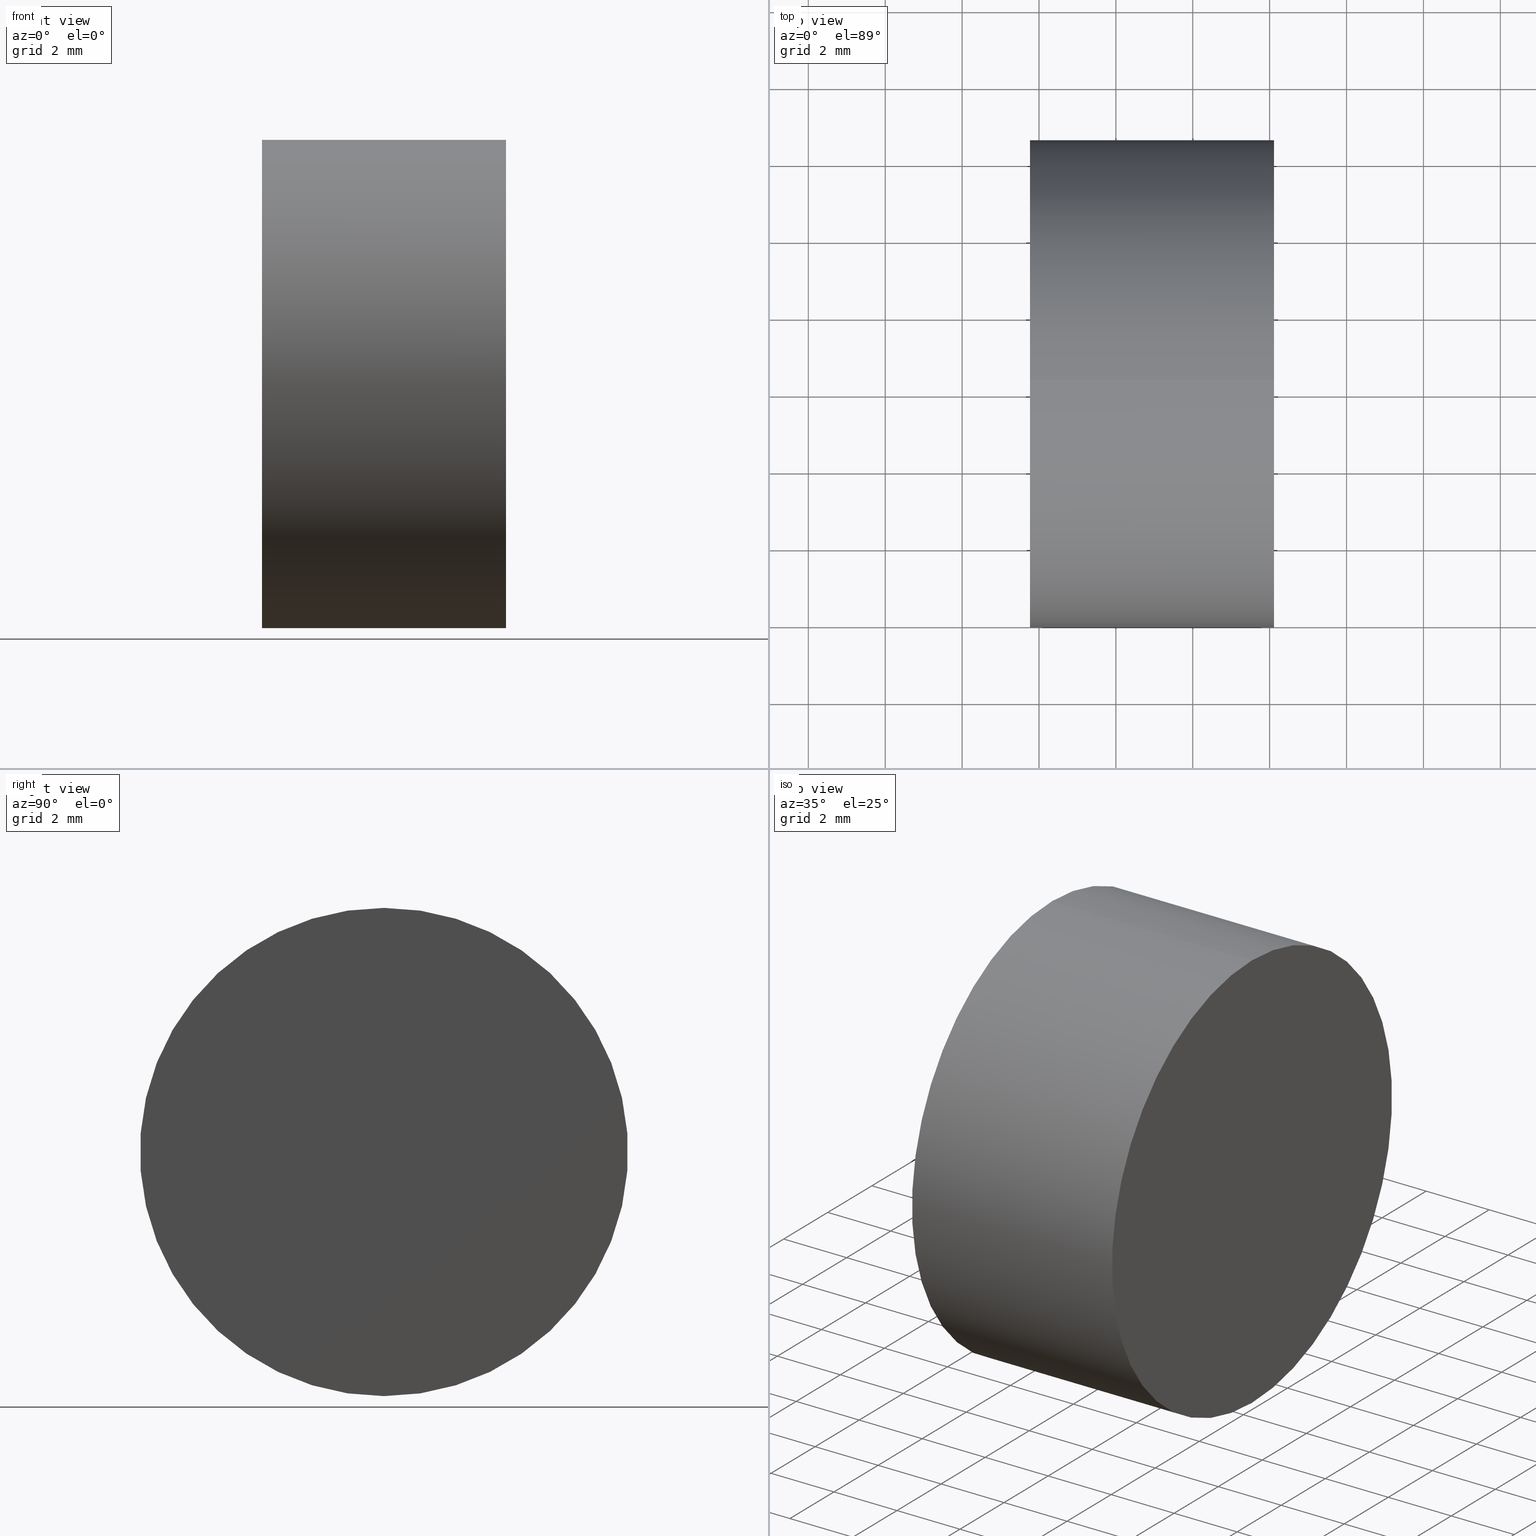
[diagram: canonical four-view strip — front | top / right | iso, engineering-drawing reading convention]
A machine part, canonical four-view strip (front | top / right | iso — engineering-drawing reading convention). The complete STEP part file that produces these views, byte-faithful:
ISO-10303-21;
HEADER;
FILE_DESCRIPTION (( 'STEP AP203' ),
    '1' );
FILE_NAME ('440002.STEP',
    '2019-08-23T07:20:13',
    ( '' ),
    ( '' ),
    'SwSTEP 2.0',
    'SolidWorks 2016',
    '' );
FILE_SCHEMA (( 'CONFIG_CONTROL_DESIGN' ));
ENDSEC;

DATA;
#1 = EDGE_CURVE ( 'NONE', #427, #516, #292, .T. ) ;
#2 = CLOSED_SHELL ( 'NONE', ( #26, #421, #32, #260 ) ) ;
#3 = ORIENTED_EDGE ( 'NONE', *, *, #611, .T. ) ;
#4 = APPROVAL ( #309, 'δָ��' ) ;
#5 = ORIENTED_EDGE ( 'NONE', *, *, #86, .F. ) ;
#6 = EDGE_CURVE ( 'NONE', #521, #332, #386, .T. ) ;
#7 = ADVANCED_FACE ( 'NONE', ( #564, #51 ), #512, .T. ) ;
#8 = APPROVAL_PERSON_ORGANIZATION ( #113, #132, #661 ) ;
#9 = FACE_OUTER_BOUND ( 'NONE', #485, .T. ) ;
#10 = DIRECTION ( 'NONE',  ( 1.000000000000000000, 0.0000000000000000000, 0.0000000000000000000 ) ) ;
#11 = FACE_OUTER_BOUND ( 'NONE', #339, .T. ) ;
#12 = APPROVAL ( #248, 'δָ��' ) ;
#13 = CARTESIAN_POINT ( 'NONE',  ( 234.1145190849216200, 0.0000000000000000000, 0.0000000000000000000 ) ) ;
#14 = AXIS2_PLACEMENT_3D ( 'NONE', #100, #407, #655 ) ;
#15 = CARTESIAN_POINT ( 'NONE',  ( 227.7645190849216300, 108.2256958952383700, 0.0000000000000000000 ) ) ;
#16 = DATE_AND_TIME ( #316, #425 ) ;
#17 = AXIS2_PLACEMENT_3D ( 'NONE', #436, #35, #284 ) ;
#18 = LINE ( 'NONE', #522, #527 ) ;
#19 = EDGE_LOOP ( 'NONE', ( #181, #498 ) ) ;
#20 = EDGE_LOOP ( 'NONE', ( #138, #318 ) ) ;
#21 = DIRECTION ( 'NONE',  ( 0.0000000000000000000, 0.0000000000000000000, 1.000000000000000000 ) ) ;
#22 = EDGE_CURVE ( 'NONE', #533, #466, #426, .T. ) ;
#23 = EDGE_CURVE ( 'NONE', #130, #259, #18, .T. ) ;
#24 = SECURITY_CLASSIFICATION ( '', '', #307 ) ;
#25 = APPROVAL_DATE_TIME ( #552, #12 ) ;
#26 = ADVANCED_FACE ( 'NONE', ( #65 ), #153, .T. ) ;
#27 = EDGE_CURVE ( 'NONE', #521, #662, #282, .T. ) ;
#28 = FACE_BOUND ( 'NONE', #610, .T. ) ;
#29 = CARTESIAN_POINT ( 'NONE',  ( 234.1145190849216200, 108.2256958952383700, 0.0000000000000000000 ) ) ;
#30 = ORIENTED_EDGE ( 'NONE', *, *, #182, .F. ) ;
#31 = CARTESIAN_POINT ( 'NONE',  ( 228.7645190849216300, 108.2256958952383700, 0.0000000000000000000 ) ) ;
#32 = ADVANCED_FACE ( 'NONE', ( #163 ), #418, .T. ) ;
#33 = DIRECTION ( 'NONE',  ( 0.0000000000000000000, 0.0000000000000000000, 1.000000000000000000 ) ) ;
#34 = CC_DESIGN_PERSON_AND_ORGANIZATION_ASSIGNMENT ( #77, #110, ( #657 ) ) ;
#35 = DIRECTION ( 'NONE',  ( -1.000000000000000000, -0.0000000000000000000, -0.0000000000000000000 ) ) ;
#36 = LOCAL_TIME ( 15, 20, 13.00000000000000000, #439 ) ;
#37 = APPROVAL_PERSON_ORGANIZATION ( #250, #370, #355 ) ;
#38 = EDGE_LOOP ( 'NONE', ( #375, #170 ) ) ;
#39 = DIRECTION ( 'NONE',  ( 0.0000000000000000000, 0.0000000000000000000, 1.000000000000000000 ) ) ;
#40 = ORIENTED_EDGE ( 'NONE', *, *, #84, .F. ) ;
#41 = CARTESIAN_POINT ( 'NONE',  ( 234.1145190849216200, 108.2256958952383700, 5.025000000000015500 ) ) ;
#42 = DIRECTION ( 'NONE',  ( 1.000000000000000000, 0.0000000000000000000, 0.0000000000000000000 ) ) ;
#43 = AXIS2_PLACEMENT_3D ( 'NONE', #508, #652, #156 ) ;
#44 = DIRECTION ( 'NONE',  ( -1.000000000000000000, -0.0000000000000000000, -0.0000000000000000000 ) ) ;
#45 = PERSON_AND_ORGANIZATION_ROLE ( 'creator' ) ;
#46 = CARTESIAN_POINT ( 'NONE',  ( 227.7645190849216300, 108.2256958952383700, 5.025000000000002100 ) ) ;
#47 = CYLINDRICAL_SURFACE ( 'NONE', #484, 5.025000000000022600 ) ;
#48 = DATE_TIME_ROLE ( 'creation_date' ) ;
#49 = FACE_BOUND ( 'NONE', #473, .T. ) ;
#50 = EDGE_CURVE ( 'NONE', #541, #107, #405, .T. ) ;
#51 = FACE_OUTER_BOUND ( 'NONE', #432, .T. ) ;
#52 = DIRECTION ( 'NONE',  ( 0.0000000000000000000, 0.0000000000000000000, 1.000000000000000000 ) ) ;
#53 = APPLICATION_PROTOCOL_DEFINITION ( 'international standard', 'config_control_design', 1994, #150 ) ;
#54 = CC_DESIGN_DATE_AND_TIME_ASSIGNMENT ( #626, #553, ( #24 ) ) ;
#55 = EDGE_CURVE ( 'NONE', #516, #427, #660, .T. ) ;
#56 = CARTESIAN_POINT ( 'NONE',  ( 219.9023322559852100, 108.2256958952383700, 0.0000000000000000000 ) ) ;
#57 = APPROVAL_ROLE ( '' ) ;
#58 = ORIENTED_EDGE ( 'NONE', *, *, #50, .F. ) ;
#59 = EDGE_LOOP ( 'NONE', ( #387, #210, #192, #115 ) ) ;
#60 = AXIS2_PLACEMENT_3D ( 'NONE', #640, #441, #585 ) ;
#61 = EDGE_CURVE ( 'NONE', #662, #521, #635, .T. ) ;
#62 = ADVANCED_FACE ( 'NONE', ( #393 ), #281, .F. ) ;
#63 = APPROVAL_PERSON_ORGANIZATION ( #524, #612, #57 ) ;
#64 = FACE_OUTER_BOUND ( 'NONE', #293, .T. ) ;
#65 = FACE_OUTER_BOUND ( 'NONE', #143, .T. ) ;
#66 = ORIENTED_EDGE ( 'NONE', *, *, #126, .T. ) ;
#67 = AXIS2_PLACEMENT_3D ( 'NONE', #486, #195, #344 ) ;
#68 = DIRECTION ( 'NONE',  ( 0.0000000000000000000, 0.0000000000000000000, 1.000000000000000000 ) ) ;
#69 = APPROVAL_DATE_TIME ( #120, #612 ) ;
#70 = LINE ( 'NONE', #437, #647 ) ;
#71 = EDGE_LOOP ( 'NONE', ( #326, #144, #649, #528 ) ) ;
#72 = VERTEX_POINT ( 'NONE', #538 ) ;
#73 = ORIENTED_EDGE ( 'NONE', *, *, #177, .T. ) ;
#74 = EDGE_CURVE ( 'NONE', #130, #235, #252, .T. ) ;
#75 = CC_DESIGN_APPROVAL ( #12, ( #579 ) ) ;
#76 = ADVANCED_FACE ( 'NONE', ( #11 ), #199, .F. ) ;
#77 = PERSON_AND_ORGANIZATION ( #586, #142 ) ;
#78 = DIRECTION ( 'NONE',  ( -1.000000000000000000, -0.0000000000000000000, -0.0000000000000000000 ) ) ;
#79 = COORDINATED_UNIVERSAL_TIME_OFFSET ( 8, 0, .AHEAD. ) ;
#80 = LINE ( 'NONE', #544, #497 ) ;
#81 = ORIENTED_EDGE ( 'NONE', *, *, #358, .F. ) ;
#82 = PLANE ( 'NONE',  #134 ) ;
#83 = ADVANCED_FACE ( 'NONE', ( #507, #9 ), #236, .F. ) ;
#84 = EDGE_CURVE ( 'NONE', #565, #414, #580, .T. ) ;
#85 = DIRECTION ( 'NONE',  ( -1.000000000000000000, -0.0000000000000000000, -0.0000000000000000000 ) ) ;
#86 = EDGE_CURVE ( 'NONE', #107, #541, #420, .T. ) ;
#87 = FACE_OUTER_BOUND ( 'NONE', #59, .T. ) ;
#88 = CARTESIAN_POINT ( 'NONE',  ( 219.9023322559852100, 108.2256958952383700, 0.0000000000000000000 ) ) ;
#89 = VERTEX_POINT ( 'NONE', #291 ) ;
#90 = EDGE_LOOP ( 'NONE', ( #109, #175 ) ) ;
#91 = CARTESIAN_POINT ( 'NONE',  ( 219.9023322559852100, 108.2256958952383700, 0.0000000000000000000 ) ) ;
#92 = PLANE ( 'NONE',  #279 ) ;
#93 =( GEOMETRIC_REPRESENTATION_CONTEXT ( 3 ) GLOBAL_UNCERTAINTY_ASSIGNED_CONTEXT ( ( #232 ) ) GLOBAL_UNIT_ASSIGNED_CONTEXT ( ( #503, #558, #357 ) ) REPRESENTATION_CONTEXT ( 'NONE', 'WORKASPACE' ) );
#94 = DIRECTION ( 'NONE',  ( -1.000000000000000000, -0.0000000000000000000, -0.0000000000000000000 ) ) ;
#95 = CARTESIAN_POINT ( 'NONE',  ( 233.1145190849216200, 108.2256958952383700, 0.0000000000000000000 ) ) ;
#96 = DIRECTION ( 'NONE',  ( -1.000000000000000000, -0.0000000000000000000, -0.0000000000000000000 ) ) ;
#97 = LINE ( 'NONE', #396, #514 ) ;
#98 = CARTESIAN_POINT ( 'NONE',  ( 219.9023322559852100, 108.2256958952383700, 5.025000000000022600 ) ) ;
#99 = ORIENTED_EDGE ( 'NONE', *, *, #112, .F. ) ;
#100 = CARTESIAN_POINT ( 'NONE',  ( 227.7645190849216300, 108.2256958952383700, 0.0000000000000000000 ) ) ;
#101 = AXIS2_PLACEMENT_3D ( 'NONE', #15, #478, #475 ) ;
#102 = DIRECTION ( 'NONE',  ( 0.0000000000000000000, 0.0000000000000000000, 1.000000000000000000 ) ) ;
#103 = PERSON_AND_ORGANIZATION_ROLE ( 'creator' ) ;
#104 = CARTESIAN_POINT ( 'NONE',  ( 227.7645190849216300, 108.2256958952383700, 0.0000000000000000000 ) ) ;
#105 = APPLICATION_CONTEXT ( 'configuration controlled 3d designs of mechanical parts and assemblies' ) ;
#106 = FACE_OUTER_BOUND ( 'NONE', #71, .T. ) ;
#107 = VERTEX_POINT ( 'NONE', #644 ) ;
#108 = DIRECTION ( 'NONE',  ( -1.000000000000000000, -0.0000000000000000000, -0.0000000000000000000 ) ) ;
#109 = ORIENTED_EDGE ( 'NONE', *, *, #84, .T. ) ;
#110 = PERSON_AND_ORGANIZATION_ROLE ( 'classification_officer' ) ;
#111 = ADVANCED_FACE ( 'NONE', ( #520 ), #592, .T. ) ;
#112 = EDGE_CURVE ( 'NONE', #581, #107, #70, .T. ) ;
#113 = PERSON_AND_ORGANIZATION ( #586, #142 ) ;
#114 = CYLINDRICAL_SURFACE ( 'NONE', #430, 5.025000000000002100 ) ;
#115 = ORIENTED_EDGE ( 'NONE', *, *, #623, .T. ) ;
#116 = ADVANCED_FACE ( 'NONE', ( #28, #378 ), #388, .F. ) ;
#117 = DIRECTION ( 'NONE',  ( -1.000000000000000000, -0.0000000000000000000, -0.0000000000000000000 ) ) ;
#118 = ADVANCED_FACE ( 'NONE', ( #531 ), #608, .F. ) ;
#119 = CARTESIAN_POINT ( 'NONE',  ( 219.9023322559852100, 108.2256958952383700, 0.0000000000000000000 ) ) ;
#120 = DATE_AND_TIME ( #496, #625 ) ;
#121 = ADVANCED_BREP_SHAPE_REPRESENTATION ( '440002', ( #342, #149, #571, #43 ), #93 ) ;
#122 = LINE ( 'NONE', #359, #300 ) ;
#123 = ORIENTED_EDGE ( 'NONE', *, *, #477, .T. ) ;
#124 = ORIENTED_EDGE ( 'NONE', *, *, #602, .F. ) ;
#125 = DIRECTION ( 'NONE',  ( 0.0000000000000000000, 0.0000000000000000000, 1.000000000000000000 ) ) ;
#126 = EDGE_CURVE ( 'NONE', #174, #422, #384, .T. ) ;
#127 = CC_DESIGN_PERSON_AND_ORGANIZATION_ASSIGNMENT ( #367, #501, ( #183 ) ) ;
#128 = COORDINATED_UNIVERSAL_TIME_OFFSET ( 8, 0, .AHEAD. ) ;
#129 = VECTOR ( 'NONE', #556, 1000.000000000000000 ) ;
#130 = VERTEX_POINT ( 'NONE', #546 ) ;
#131 = DIRECTION ( 'NONE',  ( -1.000000000000000000, -0.0000000000000000000, -0.0000000000000000000 ) ) ;
#132 = APPROVAL ( #409, 'δָ��' ) ;
#133 = CARTESIAN_POINT ( 'NONE',  ( 228.7645190849216300, 108.2256958952383700, 0.0000000000000000000 ) ) ;
#134 = AXIS2_PLACEMENT_3D ( 'NONE', #331, #327, #530 ) ;
#135 = COORDINATED_UNIVERSAL_TIME_OFFSET ( 8, 0, .AHEAD. ) ;
#136 = CIRCLE ( 'NONE', #468, 5.025000000000029700 ) ;
#137 = VERTEX_POINT ( 'NONE', #148 ) ;
#138 = ORIENTED_EDGE ( 'NONE', *, *, #372, .F. ) ;
#139 = CARTESIAN_POINT ( 'NONE',  ( 227.7645190849216300, 108.2256958952383700, 0.0000000000000000000 ) ) ;
#140 = DIRECTION ( 'NONE',  ( -1.000000000000000000, -0.0000000000000000000, -0.0000000000000000000 ) ) ;
#141 = EDGE_CURVE ( 'NONE', #593, #332, #505, .T. ) ;
#142 = ORGANIZATION ( 'δָ��', 'δָ��', '' ) ;
#143 = EDGE_LOOP ( 'NONE', ( #208, #341, #30, #244 ) ) ;
#144 = ORIENTED_EDGE ( 'NONE', *, *, #74, .T. ) ;
#145 = DIRECTION ( 'NONE',  ( 1.000000000000000000, 0.0000000000000000000, 0.0000000000000000000 ) ) ;
#146 = ORIENTED_EDGE ( 'NONE', *, *, #1, .F. ) ;
#147 = AXIS2_PLACEMENT_3D ( 'NONE', #351, #159, #452 ) ;
#148 = CARTESIAN_POINT ( 'NONE',  ( 233.1145190849216200, 108.2256958952383700, -4.049999999999998000 ) ) ;
#149 = MANIFOLD_SOLID_BREP ( '��ת2', #2 ) ;
#150 = APPLICATION_CONTEXT ( 'configuration controlled 3d designs of mechanical parts and assemblies' ) ;
#151 = CALENDAR_DATE ( 2019, 23, 8 ) ;
#152 = VECTOR ( 'NONE', #348, 1000.000000000000000 ) ;
#153 = CYLINDRICAL_SURFACE ( 'NONE', #515, 5.025000000000002100 ) ;
#154 = SECURITY_CLASSIFICATION_LEVEL ( 'unclassified' ) ;
#155 = DIRECTION ( 'NONE',  ( -1.000000000000000000, -0.0000000000000000000, -0.0000000000000000000 ) ) ;
#156 = DIRECTION ( 'NONE',  ( 1.000000000000000000, 0.0000000000000000000, 0.0000000000000000000 ) ) ;
#157 = EDGE_CURVE ( 'NONE', #422, #174, #464, .T. ) ;
#158 = DIRECTION ( 'NONE',  ( 0.0000000000000000000, 0.0000000000000000000, 1.000000000000000000 ) ) ;
#159 = DIRECTION ( 'NONE',  ( 0.0000000000000000000, 0.0000000000000000000, 1.000000000000000000 ) ) ;
#160 = DIRECTION ( 'NONE',  ( -1.000000000000000000, -0.0000000000000000000, -0.0000000000000000000 ) ) ;
#161 = CC_DESIGN_APPROVAL ( #4, ( #549 ) ) ;
#162 = PERSON_AND_ORGANIZATION ( #586, #142 ) ;
#163 = FACE_OUTER_BOUND ( 'NONE', #20, .T. ) ;
#164 = DIRECTION ( 'NONE',  ( 0.0000000000000000000, 0.0000000000000000000, 1.000000000000000000 ) ) ;
#165 = ORIENTED_EDGE ( 'NONE', *, *, #648, .F. ) ;
#166 = DIRECTION ( 'NONE',  ( 1.000000000000000000, 0.0000000000000000000, 0.0000000000000000000 ) ) ;
#167 = APPROVAL ( #547, 'δָ��' ) ;
#168 = CYLINDRICAL_SURFACE ( 'NONE', #381, 5.025000000000022600 ) ;
#169 = FACE_OUTER_BOUND ( 'NONE', #323, .T. ) ;
#170 = ORIENTED_EDGE ( 'NONE', *, *, #141, .F. ) ;
#171 = AXIS2_PLACEMENT_3D ( 'NONE', #272, #328, #21 ) ;
#172 = ADVANCED_FACE ( 'NONE', ( #658 ), #265, .T. ) ;
#173 = DIRECTION ( 'NONE',  ( 0.0000000000000000000, 0.0000000000000000000, -1.000000000000000000 ) ) ;
#174 = VERTEX_POINT ( 'NONE', #659 ) ;
#175 = ORIENTED_EDGE ( 'NONE', *, *, #406, .T. ) ;
#176 = CARTESIAN_POINT ( 'NONE',  ( 227.7645190849216300, 108.2256958952383700, 0.0000000000000000000 ) ) ;
#177 = EDGE_CURVE ( 'NONE', #89, #462, #251, .T. ) ;
#178 = CARTESIAN_POINT ( 'NONE',  ( 219.9023322559852100, 108.2256958952383700, 0.0000000000000000000 ) ) ;
#179 = APPROVAL_PERSON_ORGANIZATION ( #645, #12, #449 ) ;
#180 = CYLINDRICAL_SURFACE ( 'NONE', #613, 5.025000000000002100 ) ;
#181 = ORIENTED_EDGE ( 'NONE', *, *, #27, .T. ) ;
#182 = EDGE_CURVE ( 'NONE', #274, #259, #373, .T. ) ;
#183 = PRODUCT ( '440002', '440002', '', ( #196 ) ) ;
#184 = CARTESIAN_POINT ( 'NONE',  ( 219.9023322559852100, 108.2256958952383700, 0.0000000000000000000 ) ) ;
#185 = CARTESIAN_POINT ( 'NONE',  ( 219.9023322559852100, 108.2256958952383700, 0.0000000000000000000 ) ) ;
#186 = AXIS2_PLACEMENT_3D ( 'NONE', #495, #140, #434 ) ;
#187 = DIRECTION ( 'NONE',  ( 0.0000000000000000000, 0.0000000000000000000, 1.000000000000000000 ) ) ;
#188 = DATE_AND_TIME ( #519, #656 ) ;
#189 = EDGE_LOOP ( 'NONE', ( #253, #483 ) ) ;
#190 = ORIENTED_EDGE ( 'NONE', *, *, #240, .T. ) ;
#191 = CARTESIAN_POINT ( 'NONE',  ( 234.1145190849216200, 108.2256958952383700, 0.0000000000000000000 ) ) ;
#192 = ORIENTED_EDGE ( 'NONE', *, *, #6, .T. ) ;
#193 = DIRECTION ( 'NONE',  ( -1.000000000000000000, -0.0000000000000000000, -0.0000000000000000000 ) ) ;
#194 = CARTESIAN_POINT ( 'NONE',  ( 227.7645190849216300, 108.2256958952383700, -5.025000000000002100 ) ) ;
#195 = DIRECTION ( 'NONE',  ( 1.000000000000000000, 0.0000000000000000000, 0.0000000000000000000 ) ) ;
#196 = MECHANICAL_CONTEXT ( 'NONE', #150, 'mechanical' ) ;
#197 = CARTESIAN_POINT ( 'NONE',  ( 234.1145190849216200, 108.2256958952383700, 0.0000000000000000000 ) ) ;
#198 = COORDINATED_UNIVERSAL_TIME_OFFSET ( 8, 0, .AHEAD. ) ;
#199 = CYLINDRICAL_SURFACE ( 'NONE', #273, 4.049999999999998000 ) ;
#200 = ORIENTED_EDGE ( 'NONE', *, *, #6, .F. ) ;
#201 = CARTESIAN_POINT ( 'NONE',  ( 227.7645190849216300, 108.2256958952383700, -5.025000000000002100 ) ) ;
#202 = PERSON_AND_ORGANIZATION_ROLE ( 'design_supplier' ) ;
#203 = AXIS2_PLACEMENT_3D ( 'NONE', #13, #166, #173 ) ;
#204 = APPLICATION_PROTOCOL_DEFINITION ( 'international standard', 'config_control_design', 1994, #663 ) ;
#205 = PERSON_AND_ORGANIZATION ( #586, #142 ) ;
#206 = CIRCLE ( 'NONE', #654, 5.025000000000002100 ) ;
#207 = CARTESIAN_POINT ( 'NONE',  ( 228.7645190849216300, 108.2256958952383700, 5.025000000000002100 ) ) ;
#208 = ORIENTED_EDGE ( 'NONE', *, *, #372, .T. ) ;
#209 = CC_DESIGN_DATE_AND_TIME_ASSIGNMENT ( #469, #457, ( #657 ) ) ;
#210 = ORIENTED_EDGE ( 'NONE', *, *, #27, .F. ) ;
#211 = EDGE_LOOP ( 'NONE', ( #228, #343, #555, #200 ) ) ;
#212 = CC_DESIGN_PERSON_AND_ORGANIZATION_ASSIGNMENT ( #419, #500, ( #579 ) ) ;
#213 = CALENDAR_DATE ( 2019, 23, 8 ) ;
#214 = FACE_OUTER_BOUND ( 'NONE', #234, .T. ) ;
#215 = PRODUCT_DEFINITION_SHAPE ( 'NONE', 'NONE',  #303 ) ;
#216 = EDGE_LOOP ( 'NONE', ( #395, #543, #622, #99 ) ) ;
#217 = CARTESIAN_POINT ( 'NONE',  ( 228.7645190849216300, 108.2256958952383700, 0.0000000000000000000 ) ) ;
#218 = CARTESIAN_POINT ( 'NONE',  ( 234.1145190849216200, 108.2256958952383700, 0.0000000000000000000 ) ) ;
#219 = CYLINDRICAL_SURFACE ( 'NONE', #642, 5.025000000000022600 ) ;
#220 = DIRECTION ( 'NONE',  ( -1.000000000000000000, -0.0000000000000000000, -0.0000000000000000000 ) ) ;
#221 = ORIENTED_EDGE ( 'NONE', *, *, #319, .F. ) ;
#222 = AXIS2_PLACEMENT_3D ( 'NONE', #217, #315, #125 ) ;
#223 = ORIENTED_EDGE ( 'NONE', *, *, #1, .T. ) ;
#224 = CC_DESIGN_PERSON_AND_ORGANIZATION_ASSIGNMENT ( #280, #604, ( #24 ) ) ;
#225 = DIRECTION ( 'NONE',  ( 0.0000000000000000000, 0.0000000000000000000, 1.000000000000000000 ) ) ;
#226 = LOCAL_TIME ( 15, 20, 13.00000000000000000, #198 ) ;
#227 = VECTOR ( 'NONE', #155, 1000.000000000000000 ) ;
#228 = ORIENTED_EDGE ( 'NONE', *, *, #61, .F. ) ;
#229 = CC_DESIGN_SECURITY_CLASSIFICATION ( #24, ( #579 ) ) ;
#230 = AXIS2_PLACEMENT_3D ( 'NONE', #185, #94, #542 ) ;
#231 = DIRECTION ( 'NONE',  ( -1.000000000000000000, -0.0000000000000000000, -0.0000000000000000000 ) ) ;
#232 = UNCERTAINTY_MEASURE_WITH_UNIT (LENGTH_MEASURE( 1.000000000000000100E-005 ), #503, 'distance_accuracy_value', 'NONE');
#233 = CIRCLE ( 'NONE', #435, 5.025000000000015500 ) ;
#234 = EDGE_LOOP ( 'NONE', ( #615, #471, #628, #364 ) ) ;
#235 = VERTEX_POINT ( 'NONE', #207 ) ;
#236 = PLANE ( 'NONE',  #562 ) ;
#237 = CARTESIAN_POINT ( 'NONE',  ( 219.9023322559852100, 108.2256958952383700, 5.025000000000022600 ) ) ;
#238 = DIRECTION ( 'NONE',  ( -1.000000000000000000, -0.0000000000000000000, -0.0000000000000000000 ) ) ;
#239 = DIRECTION ( 'NONE',  ( -1.000000000000000000, -0.0000000000000000000, -0.0000000000000000000 ) ) ;
#240 = EDGE_CURVE ( 'NONE', #581, #137, #470, .T. ) ;
#241 = COORDINATED_UNIVERSAL_TIME_OFFSET ( 8, 0, .AHEAD. ) ;
#242 = CALENDAR_DATE ( 2019, 23, 8 ) ;
#243 = CIRCLE ( 'NONE', #60, 5.025000000000029700 ) ;
#244 = ORIENTED_EDGE ( 'NONE', *, *, #545, .F. ) ;
#245 = CARTESIAN_POINT ( 'NONE',  ( 233.1145190849216200, 108.2256958952383700, 0.0000000000000000000 ) ) ;
#246 = PRODUCT_RELATED_PRODUCT_CATEGORY ( 'detail', '', ( #183 ) ) ;
#247 = DIRECTION ( 'NONE',  ( -1.000000000000000000, -0.0000000000000000000, -0.0000000000000000000 ) ) ;
#248 = APPROVAL_STATUS ( 'not_yet_approved' ) ;
#249 = APPROVAL_STATUS ( 'not_yet_approved' ) ;
#250 = PERSON_AND_ORGANIZATION ( #586, #142 ) ;
#251 = CIRCLE ( 'NONE', #313, 5.025000000000029700 ) ;
#252 = CIRCLE ( 'NONE', #636, 5.025000000000002100 ) ;
#253 = ORIENTED_EDGE ( 'NONE', *, *, #477, .F. ) ;
#254 = EDGE_CURVE ( 'NONE', #466, #72, #258, .T. ) ;
#255 = DESIGN_CONTEXT ( 'detailed design', #601, 'design' ) ;
#256 = CC_DESIGN_APPROVAL ( #132, ( #24 ) ) ;
#257 = APPROVAL_PERSON_ORGANIZATION ( #463, #4, #360 ) ;
#258 = LINE ( 'NONE', #98, #317 ) ;
#259 = VERTEX_POINT ( 'NONE', #201 ) ;
#260 = ADVANCED_FACE ( 'NONE', ( #106 ), #180, .T. ) ;
#261 = CC_DESIGN_PERSON_AND_ORGANIZATION_ASSIGNMENT ( #162, #607, ( #285 ) ) ;
#262 = CARTESIAN_POINT ( 'NONE',  ( 219.9023322559852100, 108.2256958952383700, 0.0000000000000000000 ) ) ;
#263 = PERSON_AND_ORGANIZATION ( #586, #142 ) ;
#264 = AXIS2_PLACEMENT_3D ( 'NONE', #104, #44, #158 ) ;
#265 = CYLINDRICAL_SURFACE ( 'NONE', #479, 6.350000000000008500 ) ;
#266 = EDGE_LOOP ( 'NONE', ( #379, #490 ) ) ;
#267 = EDGE_LOOP ( 'NONE', ( #123, #465, #165, #301 ) ) ;
#268 = CARTESIAN_POINT ( 'NONE',  ( 233.1145190849216200, 108.2256958952383700, -5.025000000000029700 ) ) ;
#269 = PERSON_AND_ORGANIZATION ( #586, #142 ) ;
#270 = ORIENTED_EDGE ( 'NONE', *, *, #55, .F. ) ;
#271 = PRODUCT_DEFINITION_FORMATION_WITH_SPECIFIED_SOURCE ( '�κ�', '', #285, .NOT_KNOWN. ) ;
#272 = CARTESIAN_POINT ( 'NONE',  ( 233.1145190849216200, 108.2256958952383700, 0.0000000000000000000 ) ) ;
#273 = AXIS2_PLACEMENT_3D ( 'NONE', #91, #394, #286 ) ;
#274 = VERTEX_POINT ( 'NONE', #400 ) ;
#275 = DIRECTION ( 'NONE',  ( 0.0000000000000000000, 0.0000000000000000000, 1.000000000000000000 ) ) ;
#276 = ADVANCED_FACE ( 'NONE', ( #49, #330 ), #603, .T. ) ;
#277 = AXIS2_PLACEMENT_3D ( 'NONE', #245, #597, #302 ) ;
#278 = DIRECTION ( 'NONE',  ( -1.000000000000000000, -0.0000000000000000000, -0.0000000000000000000 ) ) ;
#279 = AXIS2_PLACEMENT_3D ( 'NONE', #493, #646, #390 ) ;
#280 = PERSON_AND_ORGANIZATION ( #586, #142 ) ;
#281 = CYLINDRICAL_SURFACE ( 'NONE', #461, 5.025000000000022600 ) ;
#282 = CIRCLE ( 'NONE', #222, 5.025000000000002100 ) ;
#283 = DIRECTION ( 'NONE',  ( 0.0000000000000000000, 0.0000000000000000000, -1.000000000000000000 ) ) ;
#284 = DIRECTION ( 'NONE',  ( 0.0000000000000000000, 0.0000000000000000000, 1.000000000000000000 ) ) ;
#285 = PRODUCT ( '440002', '440002', '', ( #402 ) ) ;
#286 = DIRECTION ( 'NONE',  ( 0.0000000000000000000, 0.0000000000000000000, 1.000000000000000000 ) ) ;
#287 = CARTESIAN_POINT ( 'NONE',  ( 234.1145190849216200, 108.2256958952383700, -5.025000000000015500 ) ) ;
#288 = CC_DESIGN_DATE_AND_TIME_ASSIGNMENT ( #643, #48, ( #303 ) ) ;
#289 = AXIS2_PLACEMENT_3D ( 'NONE', #197, #551, #606 ) ;
#290 = DIRECTION ( 'NONE',  ( 0.0000000000000000000, 0.0000000000000000000, 1.000000000000000000 ) ) ;
#291 = CARTESIAN_POINT ( 'NONE',  ( 233.1145190849216200, 108.2256958952383700, 5.025000000000029700 ) ) ;
#292 = CIRCLE ( 'NONE', #334, 6.350000000000008500 ) ;
#293 = EDGE_LOOP ( 'NONE', ( #443, #3, #573, #124 ) ) ;
#294 = CARTESIAN_POINT ( 'NONE',  ( 227.7645190849216300, 0.0000000000000000000, 0.0000000000000000000 ) ) ;
#295 = CARTESIAN_POINT ( 'NONE',  ( 227.7645190849216300, 108.2256958952383700, -6.350000000000008500 ) ) ;
#296 = DIRECTION ( 'NONE',  ( -1.000000000000000000, -0.0000000000000000000, -0.0000000000000000000 ) ) ;
#297 = DATE_TIME_ROLE ( 'creation_date' ) ;
#298 = CARTESIAN_POINT ( 'NONE',  ( 219.9023322559852100, 108.2256958952383700, 0.0000000000000000000 ) ) ;
#299 = LOCAL_TIME ( 15, 20, 13.00000000000000000, #567 ) ;
#300 = VECTOR ( 'NONE', #247, 1000.000000000000000 ) ;
#301 = ORIENTED_EDGE ( 'NONE', *, *, #254, .F. ) ;
#302 = DIRECTION ( 'NONE',  ( 0.0000000000000000000, 0.0000000000000000000, 1.000000000000000000 ) ) ;
#303 = PRODUCT_DEFINITION ( 'δ֪', '', #271, #329 ) ;
#304 = ORIENTED_EDGE ( 'NONE', *, *, #86, .T. ) ;
#305 = AXIS2_PLACEMENT_3D ( 'NONE', #548, #399, #354 ) ;
#306 = DIRECTION ( 'NONE',  ( 1.000000000000000000, 0.0000000000000000000, 0.0000000000000000000 ) ) ;
#307 = SECURITY_CLASSIFICATION_LEVEL ( 'unclassified' ) ;
#308 = CARTESIAN_POINT ( 'NONE',  ( 219.9023322559852100, 108.2256958952383700, -4.049999999999998000 ) ) ;
#309 = APPROVAL_STATUS ( 'not_yet_approved' ) ;
#310 = DATE_AND_TIME ( #213, #578 ) ;
#311 = CLOSED_SHELL ( 'NONE', ( #118, #172, #620, #371, #116, #76, #276, #62, #7, #476, #83, #529 ) ) ;
#312 = ORIENTED_EDGE ( 'NONE', *, *, #157, .T. ) ;
#313 = AXIS2_PLACEMENT_3D ( 'NONE', #455, #499, #102 ) ;
#314 = CC_DESIGN_DATE_AND_TIME_ASSIGNMENT ( #310, #297, ( #549 ) ) ;
#315 = DIRECTION ( 'NONE',  ( -1.000000000000000000, -0.0000000000000000000, -0.0000000000000000000 ) ) ;
#316 = CALENDAR_DATE ( 2019, 23, 8 ) ;
#317 = VECTOR ( 'NONE', #510, 1000.000000000000000 ) ;
#318 = ORIENTED_EDGE ( 'NONE', *, *, #74, .F. ) ;
#319 = EDGE_CURVE ( 'NONE', #174, #427, #122, .T. ) ;
#320 = CARTESIAN_POINT ( 'NONE',  ( 228.7645190849216600, 2.527160560252560200E-012, 0.0000000000000000000 ) ) ;
#321 = EDGE_CURVE ( 'NONE', #137, #541, #404, .T. ) ;
#322 = FACE_OUTER_BOUND ( 'NONE', #267, .T. ) ;
#323 = EDGE_LOOP ( 'NONE', ( #408, #591 ) ) ;
#324 = ORIENTED_EDGE ( 'NONE', *, *, #126, .F. ) ;
#325 = DIRECTION ( 'NONE',  ( -1.000000000000000000, -0.0000000000000000000, -0.0000000000000000000 ) ) ;
#326 = ORIENTED_EDGE ( 'NONE', *, *, #23, .F. ) ;
#327 = DIRECTION ( 'NONE',  ( 1.000000000000000000, 0.0000000000000000000, 0.0000000000000000000 ) ) ;
#328 = DIRECTION ( 'NONE',  ( -1.000000000000000000, -0.0000000000000000000, -0.0000000000000000000 ) ) ;
#329 = DESIGN_CONTEXT ( 'detailed design', #105, 'design' ) ;
#330 = FACE_OUTER_BOUND ( 'NONE', #266, .T. ) ;
#331 = CARTESIAN_POINT ( 'NONE',  ( 227.7645190849216300, 0.0000000000000000000, 0.0000000000000000000 ) ) ;
#332 = VERTEX_POINT ( 'NONE', #46 ) ;
#333 = CARTESIAN_POINT ( 'NONE',  ( 234.1145190849216200, 0.0000000000000000000, 0.0000000000000000000 ) ) ;
#334 = AXIS2_PLACEMENT_3D ( 'NONE', #411, #160, #511 ) ;
#335 = CARTESIAN_POINT ( 'NONE',  ( 228.7645190849216300, 108.2256958952383700, 5.025000000000002100 ) ) ;
#336 = CARTESIAN_POINT ( 'NONE',  ( 228.7645190849216300, 108.2256958952383700, 0.0000000000000000000 ) ) ;
#337 = DIRECTION ( 'NONE',  ( -1.000000000000000000, -0.0000000000000000000, -0.0000000000000000000 ) ) ;
#338 = FACE_OUTER_BOUND ( 'NONE', #216, .T. ) ;
#339 = EDGE_LOOP ( 'NONE', ( #590, #474, #583, #304 ) ) ;
#340 = DIRECTION ( 'NONE',  ( 0.0000000000000000000, 0.0000000000000000000, -1.000000000000000000 ) ) ;
#341 = ORIENTED_EDGE ( 'NONE', *, *, #23, .T. ) ;
#342 = MANIFOLD_SOLID_BREP ( '��ת1', #311 ) ;
#343 = ORIENTED_EDGE ( 'NONE', *, *, #376, .T. ) ;
#344 = DIRECTION ( 'NONE',  ( 0.0000000000000000000, 0.0000000000000000000, -1.000000000000000000 ) ) ;
#345 = CARTESIAN_POINT ( 'NONE',  ( 219.9023322559852100, 108.2256958952383700, 5.025000000000002100 ) ) ;
#346 = DIRECTION ( 'NONE',  ( 0.0000000000000000000, 0.0000000000000000000, 1.000000000000000000 ) ) ;
#347 = AXIS2_PLACEMENT_3D ( 'NONE', #218, #117, #68 ) ;
#348 = DIRECTION ( 'NONE',  ( -1.000000000000000000, -0.0000000000000000000, -0.0000000000000000000 ) ) ;
#349 = CARTESIAN_POINT ( 'NONE',  ( 233.1145190849216200, 0.0000000000000000000, 0.0000000000000000000 ) ) ;
#350 = PERSON_AND_ORGANIZATION ( #586, #142 ) ;
#351 = CARTESIAN_POINT ( 'NONE',  ( 0.0000000000000000000, 0.0000000000000000000, 0.0000000000000000000 ) ) ;
#352 = VECTOR ( 'NONE', #238, 1000.000000000000000 ) ;
#353 = EDGE_LOOP ( 'NONE', ( #369, #451 ) ) ;
#354 = DIRECTION ( 'NONE',  ( 0.0000000000000000000, 0.0000000000000000000, 1.000000000000000000 ) ) ;
#355 = APPROVAL_ROLE ( '' ) ;
#356 = CARTESIAN_POINT ( 'NONE',  ( 234.1145190849216200, 108.2256958952383700, 0.0000000000000000000 ) ) ;
#357 =( NAMED_UNIT ( * ) SI_UNIT ( $, .STERADIAN. ) SOLID_ANGLE_UNIT ( ) );
#358 = EDGE_CURVE ( 'NONE', #422, #516, #614, .T. ) ;
#359 = CARTESIAN_POINT ( 'NONE',  ( 219.9023322559852100, 108.2256958952383700, 6.350000000000008500 ) ) ;
#360 = APPROVAL_ROLE ( '' ) ;
#361 = CARTESIAN_POINT ( 'NONE',  ( 219.9023322559852100, 108.2256958952383700, 5.025000000000002100 ) ) ;
#362 = LOCAL_TIME ( 15, 20, 13.00000000000000000, #412 ) ;
#363 = CIRCLE ( 'NONE', #101, 5.025000000000002100 ) ;
#364 = ORIENTED_EDGE ( 'NONE', *, *, #535, .F. ) ;
#365 = APPROVAL_STATUS ( 'not_yet_approved' ) ;
#366 = EDGE_LOOP ( 'NONE', ( #81, #312, #637, #270 ) ) ;
#367 = PERSON_AND_ORGANIZATION ( #586, #142 ) ;
#368 = FACE_OUTER_BOUND ( 'NONE', #366, .T. ) ;
#369 = ORIENTED_EDGE ( 'NONE', *, *, #648, .T. ) ;
#370 = APPROVAL ( #365, 'δָ��' ) ;
#371 = ADVANCED_FACE ( 'NONE', ( #338 ), #431, .F. ) ;
#372 = EDGE_CURVE ( 'NONE', #235, #130, #568, .T. ) ;
#373 = CIRCLE ( 'NONE', #264, 5.025000000000002100 ) ;
#374 = VERTEX_POINT ( 'NONE', #268 ) ;
#375 = ORIENTED_EDGE ( 'NONE', *, *, #623, .F. ) ;
#376 = EDGE_CURVE ( 'NONE', #662, #593, #634, .T. ) ;
#377 = CARTESIAN_POINT ( 'NONE',  ( 234.1145190849216200, 108.2256958952383700, 5.025000000000015500 ) ) ;
#378 = FACE_OUTER_BOUND ( 'NONE', #19, .T. ) ;
#379 = ORIENTED_EDGE ( 'NONE', *, *, #177, .F. ) ;
#380 = DIRECTION ( 'NONE',  ( -1.000000000000000000, -0.0000000000000000000, -0.0000000000000000000 ) ) ;
#381 = AXIS2_PLACEMENT_3D ( 'NONE', #184, #537, #536 ) ;
#382 = CARTESIAN_POINT ( 'NONE',  ( 219.9023322559852100, 108.2256958952383700, -5.025000000000002100 ) ) ;
#383 = APPROVAL_DATE_TIME ( #188, #132 ) ;
#384 = CIRCLE ( 'NONE', #289, 6.350000000000008500 ) ;
#385 = CARTESIAN_POINT ( 'NONE',  ( 233.1145190849216200, 108.2256958952383700, 4.049999999999998000 ) ) ;
#386 = LINE ( 'NONE', #361, #569 ) ;
#387 = ORIENTED_EDGE ( 'NONE', *, *, #376, .F. ) ;
#388 = PLANE ( 'NONE',  #67 ) ;
#389 = AXIS2_PLACEMENT_3D ( 'NONE', #133, #131, #481 ) ;
#390 = DIRECTION ( 'NONE',  ( 0.0000000000000000000, 0.0000000000000000000, -1.000000000000000000 ) ) ;
#391 = DIRECTION ( 'NONE',  ( 0.0000000000000000000, 0.0000000000000000000, 1.000000000000000000 ) ) ;
#392 = DIRECTION ( 'NONE',  ( 0.0000000000000000000, 0.0000000000000000000, 1.000000000000000000 ) ) ;
#393 = FACE_OUTER_BOUND ( 'NONE', #574, .T. ) ;
#394 = DIRECTION ( 'NONE',  ( -1.000000000000000000, -0.0000000000000000000, -0.0000000000000000000 ) ) ;
#395 = ORIENTED_EDGE ( 'NONE', *, *, #445, .F. ) ;
#396 = CARTESIAN_POINT ( 'NONE',  ( 219.9023322559852100, 108.2256958952383700, -5.025000000000022600 ) ) ;
#397 = DIRECTION ( 'NONE',  ( 0.0000000000000000000, 0.0000000000000000000, -1.000000000000000000 ) ) ;
#398 = APPROVAL_ROLE ( '' ) ;
#399 = DIRECTION ( 'NONE',  ( -1.000000000000000000, -0.0000000000000000000, -0.0000000000000000000 ) ) ;
#400 = CARTESIAN_POINT ( 'NONE',  ( 227.7645190849216300, 108.2256958952383700, 5.025000000000002100 ) ) ;
#401 = LOCAL_TIME ( 15, 20, 13.00000000000000000, #79 ) ;
#402 = MECHANICAL_CONTEXT ( 'NONE', #663, 'mechanical' ) ;
#403 = CC_DESIGN_APPROVAL ( #370, ( #303 ) ) ;
#404 = LINE ( 'NONE', #308, #227 ) ;
#405 = CIRCLE ( 'NONE', #389, 4.049999999999998000 ) ;
#406 = EDGE_CURVE ( 'NONE', #414, #565, #489, .T. ) ;
#407 = DIRECTION ( 'NONE',  ( -1.000000000000000000, -0.0000000000000000000, -0.0000000000000000000 ) ) ;
#408 = ORIENTED_EDGE ( 'NONE', *, *, #182, .T. ) ;
#409 = APPROVAL_STATUS ( 'not_yet_approved' ) ;
#410 = PERSON_AND_ORGANIZATION_ROLE ( 'design_supplier' ) ;
#411 = CARTESIAN_POINT ( 'NONE',  ( 227.7645190849216300, 108.2256958952383700, 0.0000000000000000000 ) ) ;
#412 = COORDINATED_UNIVERSAL_TIME_OFFSET ( 8, 0, .AHEAD. ) ;
#413 = APPROVAL_DATE_TIME ( #16, #370 ) ;
#414 = VERTEX_POINT ( 'NONE', #433 ) ;
#415 = ORIENTED_EDGE ( 'NONE', *, *, #611, .F. ) ;
#416 = AXIS2_PLACEMENT_3D ( 'NONE', #333, #145, #340 ) ;
#417 = CC_DESIGN_APPROVAL ( #612, ( #271 ) ) ;
#418 = PLANE ( 'NONE',  #594 ) ;
#419 = PERSON_AND_ORGANIZATION ( #586, #142 ) ;
#420 = CIRCLE ( 'NONE', #582, 4.049999999999998000 ) ;
#421 = ADVANCED_FACE ( 'NONE', ( #169 ), #82, .F. ) ;
#422 = VERTEX_POINT ( 'NONE', #429 ) ;
#423 = DIRECTION ( 'NONE',  ( 0.0000000000000000000, 0.0000000000000000000, 1.000000000000000000 ) ) ;
#424 = EDGE_CURVE ( 'NONE', #259, #274, #363, .T. ) ;
#425 = LOCAL_TIME ( 15, 20, 13.00000000000000000, #563 ) ;
#426 = CIRCLE ( 'NONE', #347, 5.025000000000015500 ) ;
#427 = VERTEX_POINT ( 'NONE', #575 ) ;
#428 = DIRECTION ( 'NONE',  ( 0.0000000000000000000, 0.0000000000000000000, 1.000000000000000000 ) ) ;
#429 = CARTESIAN_POINT ( 'NONE',  ( 234.1145190849216200, 108.2256958952383700, -6.350000000000008500 ) ) ;
#430 = AXIS2_PLACEMENT_3D ( 'NONE', #88, #337, #187 ) ;
#431 = CYLINDRICAL_SURFACE ( 'NONE', #617, 4.049999999999998000 ) ;
#432 = EDGE_LOOP ( 'NONE', ( #324, #621 ) ) ;
#433 = CARTESIAN_POINT ( 'NONE',  ( 234.1145190849216200, 108.2256958952383700, -5.025000000000015500 ) ) ;
#434 = DIRECTION ( 'NONE',  ( 0.0000000000000000000, 0.0000000000000000000, 1.000000000000000000 ) ) ;
#435 = AXIS2_PLACEMENT_3D ( 'NONE', #191, #487, #584 ) ;
#436 = CARTESIAN_POINT ( 'NONE',  ( 219.9023322559852100, 108.2256958952383700, 0.0000000000000000000 ) ) ;
#437 = CARTESIAN_POINT ( 'NONE',  ( 219.9023322559852100, 108.2256958952383700, 4.049999999999998000 ) ) ;
#438 = APPROVAL_DATE_TIME ( #539, #167 ) ;
#439 = COORDINATED_UNIVERSAL_TIME_OFFSET ( 8, 0, .AHEAD. ) ;
#440 = DATE_AND_TIME ( #572, #226 ) ;
#441 = DIRECTION ( 'NONE',  ( -1.000000000000000000, -0.0000000000000000000, -0.0000000000000000000 ) ) ;
#442 = ORIENTED_EDGE ( 'NONE', *, *, #602, .T. ) ;
#443 = ORIENTED_EDGE ( 'NONE', *, *, #406, .F. ) ;
#444 = DIRECTION ( 'NONE',  ( 0.0000000000000000000, 0.0000000000000000000, 1.000000000000000000 ) ) ;
#445 = EDGE_CURVE ( 'NONE', #137, #581, #554, .T. ) ;
#446 = DIRECTION ( 'NONE',  ( -1.000000000000000000, -0.0000000000000000000, -0.0000000000000000000 ) ) ;
#447 = PRODUCT_DEFINITION_SHAPE ( 'NONE', 'NONE',  #549 ) ;
#448 = CC_DESIGN_PERSON_AND_ORGANIZATION_ASSIGNMENT ( #618, #453, ( #271 ) ) ;
#449 = APPROVAL_ROLE ( '' ) ;
#450 = SHAPE_DEFINITION_REPRESENTATION ( #215, #121 ) ;
#451 = ORIENTED_EDGE ( 'NONE', *, *, #535, .T. ) ;
#452 = DIRECTION ( 'NONE',  ( 1.000000000000000000, 0.0000000000000000000, 0.0000000000000000000 ) ) ;
#453 = PERSON_AND_ORGANIZATION_ROLE ( 'creator' ) ;
#454 = APPLICATION_PROTOCOL_DEFINITION ( 'international standard', 'config_control_design', 1994, #601 ) ;
#455 = CARTESIAN_POINT ( 'NONE',  ( 233.1145190849216200, 108.2256958952383700, 0.0000000000000000000 ) ) ;
#456 = APPROVAL_PERSON_ORGANIZATION ( #205, #167, #398 ) ;
#457 = DATE_TIME_ROLE ( 'classification_date' ) ;
#458 = DIRECTION ( 'NONE',  ( -1.000000000000000000, -0.0000000000000000000, -0.0000000000000000000 ) ) ;
#459 = FACE_OUTER_BOUND ( 'NONE', #353, .T. ) ;
#460 = ORIENTED_EDGE ( 'NONE', *, *, #445, .T. ) ;
#461 = AXIS2_PLACEMENT_3D ( 'NONE', #119, #85, #225 ) ;
#462 = VERTEX_POINT ( 'NONE', #624 ) ;
#463 = PERSON_AND_ORGANIZATION ( #586, #142 ) ;
#464 = CIRCLE ( 'NONE', #523, 6.350000000000008500 ) ;
#465 = ORIENTED_EDGE ( 'NONE', *, *, #570, .T. ) ;
#466 = VERTEX_POINT ( 'NONE', #377 ) ;
#467 = DIRECTION ( 'NONE',  ( 0.0000000000000000000, 0.0000000000000000000, -1.000000000000000000 ) ) ;
#468 = AXIS2_PLACEMENT_3D ( 'NONE', #95, #96, #444 ) ;
#469 = DATE_AND_TIME ( #488, #362 ) ;
#470 = CIRCLE ( 'NONE', #305, 4.049999999999998000 ) ;
#471 = ORIENTED_EDGE ( 'NONE', *, *, #22, .T. ) ;
#472 = ADVANCED_FACE ( 'NONE', ( #322 ), #219, .T. ) ;
#473 = EDGE_LOOP ( 'NONE', ( #190, #460 ) ) ;
#474 = ORIENTED_EDGE ( 'NONE', *, *, #240, .F. ) ;
#475 = DIRECTION ( 'NONE',  ( 0.0000000000000000000, 0.0000000000000000000, 1.000000000000000000 ) ) ;
#476 = ADVANCED_FACE ( 'NONE', ( #368 ), #588, .T. ) ;
#477 = EDGE_CURVE ( 'NONE', #466, #533, #233, .T. ) ;
#478 = DIRECTION ( 'NONE',  ( -1.000000000000000000, -0.0000000000000000000, -0.0000000000000000000 ) ) ;
#479 = AXIS2_PLACEMENT_3D ( 'NONE', #557, #108, #52 ) ;
#480 = APPROVAL_DATE_TIME ( #440, #4 ) ;
#481 = DIRECTION ( 'NONE',  ( 0.0000000000000000000, 0.0000000000000000000, 1.000000000000000000 ) ) ;
#482 = LINE ( 'NONE', #237, #352 ) ;
#483 = ORIENTED_EDGE ( 'NONE', *, *, #22, .F. ) ;
#484 = AXIS2_PLACEMENT_3D ( 'NONE', #595, #231, #33 ) ;
#485 = EDGE_LOOP ( 'NONE', ( #223, #609 ) ) ;
#486 = CARTESIAN_POINT ( 'NONE',  ( 228.7645190849216300, 2.527160560252560200E-012, 0.0000000000000000000 ) ) ;
#487 = DIRECTION ( 'NONE',  ( -1.000000000000000000, -0.0000000000000000000, -0.0000000000000000000 ) ) ;
#488 = CALENDAR_DATE ( 2019, 23, 8 ) ;
#489 = CIRCLE ( 'NONE', #550, 5.025000000000015500 ) ;
#490 = ORIENTED_EDGE ( 'NONE', *, *, #518, .F. ) ;
#491 = CARTESIAN_POINT ( 'NONE',  ( 228.7645190849216300, 108.2256958952383700, 0.0000000000000000000 ) ) ;
#492 = ORIENTED_EDGE ( 'NONE', *, *, #358, .T. ) ;
#493 = CARTESIAN_POINT ( 'NONE',  ( 233.1145190849216200, 0.0000000000000000000, 0.0000000000000000000 ) ) ;
#494 = DIRECTION ( 'NONE',  ( -1.000000000000000000, -0.0000000000000000000, -0.0000000000000000000 ) ) ;
#495 = CARTESIAN_POINT ( 'NONE',  ( 234.1145190849216200, 108.2256958952383700, 0.0000000000000000000 ) ) ;
#496 = CALENDAR_DATE ( 2019, 23, 8 ) ;
#497 = VECTOR ( 'NONE', #494, 1000.000000000000000 ) ;
#498 = ORIENTED_EDGE ( 'NONE', *, *, #61, .T. ) ;
#499 = DIRECTION ( 'NONE',  ( -1.000000000000000000, -0.0000000000000000000, -0.0000000000000000000 ) ) ;
#500 = PERSON_AND_ORGANIZATION_ROLE ( 'creator' ) ;
#501 = PERSON_AND_ORGANIZATION_ROLE ( 'design_owner' ) ;
#502 = DIRECTION ( 'NONE',  ( 0.0000000000000000000, 0.0000000000000000000, 1.000000000000000000 ) ) ;
#503 =( LENGTH_UNIT ( ) NAMED_UNIT ( * ) SI_UNIT ( .MILLI., .METRE. ) );
#504 = AXIS2_PLACEMENT_3D ( 'NONE', #176, #325, #275 ) ;
#505 = CIRCLE ( 'NONE', #14, 5.025000000000002100 ) ;
#506 = DIRECTION ( 'NONE',  ( -1.000000000000000000, -0.0000000000000000000, -0.0000000000000000000 ) ) ;
#507 = FACE_BOUND ( 'NONE', #38, .T. ) ;
#508 = CARTESIAN_POINT ( 'NONE',  ( 0.0000000000000000000, 0.0000000000000000000, 0.0000000000000000000 ) ) ;
#509 = CLOSED_SHELL ( 'NONE', ( #472, #532, #111, #631 ) ) ;
#510 = DIRECTION ( 'NONE',  ( -1.000000000000000000, -0.0000000000000000000, -0.0000000000000000000 ) ) ;
#511 = DIRECTION ( 'NONE',  ( 0.0000000000000000000, 0.0000000000000000000, 1.000000000000000000 ) ) ;
#512 = PLANE ( 'NONE',  #203 ) ;
#513 = COORDINATED_UNIVERSAL_TIME_OFFSET ( 8, 0, .AHEAD. ) ;
#514 = VECTOR ( 'NONE', #446, 1000.000000000000000 ) ;
#515 = AXIS2_PLACEMENT_3D ( 'NONE', #262, #566, #423 ) ;
#516 = VERTEX_POINT ( 'NONE', #295 ) ;
#517 = CC_DESIGN_PERSON_AND_ORGANIZATION_ASSIGNMENT ( #350, #45, ( #549 ) ) ;
#518 = EDGE_CURVE ( 'NONE', #462, #89, #136, .T. ) ;
#519 = CALENDAR_DATE ( 2019, 23, 8 ) ;
#520 = FACE_OUTER_BOUND ( 'NONE', #189, .T. ) ;
#521 = VERTEX_POINT ( 'NONE', #335 ) ;
#522 = CARTESIAN_POINT ( 'NONE',  ( 219.9023322559852100, 108.2256958952383700, -5.025000000000002100 ) ) ;
#523 = AXIS2_PLACEMENT_3D ( 'NONE', #356, #296, #650 ) ;
#524 = PERSON_AND_ORGANIZATION ( #586, #142 ) ;
#525 = LOCAL_TIME ( 15, 20, 13.00000000000000000, #513 ) ;
#526 = CC_DESIGN_APPROVAL ( #167, ( #657 ) ) ;
#527 = VECTOR ( 'NONE', #220, 1000.000000000000000 ) ;
#528 = ORIENTED_EDGE ( 'NONE', *, *, #424, .F. ) ;
#529 = ADVANCED_FACE ( 'NONE', ( #87 ), #114, .F. ) ;
#530 = DIRECTION ( 'NONE',  ( 0.0000000000000000000, 0.0000000000000000000, -1.000000000000000000 ) ) ;
#531 = FACE_OUTER_BOUND ( 'NONE', #211, .T. ) ;
#532 = ADVANCED_FACE ( 'NONE', ( #459 ), #92, .F. ) ;
#533 = VERTEX_POINT ( 'NONE', #287 ) ;
#534 = DIRECTION ( 'NONE',  ( -1.000000000000000000, -0.0000000000000000000, -0.0000000000000000000 ) ) ;
#535 = EDGE_CURVE ( 'NONE', #374, #72, #243, .T. ) ;
#536 = DIRECTION ( 'NONE',  ( 0.0000000000000000000, 0.0000000000000000000, 1.000000000000000000 ) ) ;
#537 = DIRECTION ( 'NONE',  ( -1.000000000000000000, -0.0000000000000000000, -0.0000000000000000000 ) ) ;
#538 = CARTESIAN_POINT ( 'NONE',  ( 233.1145190849216200, 108.2256958952383700, 5.025000000000029700 ) ) ;
#539 = DATE_AND_TIME ( #561, #36 ) ;
#540 = CALENDAR_DATE ( 2019, 23, 8 ) ;
#541 = VERTEX_POINT ( 'NONE', #641 ) ;
#542 = DIRECTION ( 'NONE',  ( 0.0000000000000000000, 0.0000000000000000000, 1.000000000000000000 ) ) ;
#543 = ORIENTED_EDGE ( 'NONE', *, *, #321, .T. ) ;
#544 = CARTESIAN_POINT ( 'NONE',  ( 219.9023322559852100, 108.2256958952383700, -5.025000000000022600 ) ) ;
#545 = EDGE_CURVE ( 'NONE', #235, #274, #627, .T. ) ;
#546 = CARTESIAN_POINT ( 'NONE',  ( 228.7645190849216300, 108.2256958952383700, -5.025000000000002100 ) ) ;
#547 = APPROVAL_STATUS ( 'not_yet_approved' ) ;
#548 = CARTESIAN_POINT ( 'NONE',  ( 233.1145190849216200, 108.2256958952383700, 0.0000000000000000000 ) ) ;
#549 = PRODUCT_DEFINITION ( 'δ֪', '', #579, #255 ) ;
#550 = AXIS2_PLACEMENT_3D ( 'NONE', #29, #78, #428 ) ;
#551 = DIRECTION ( 'NONE',  ( -1.000000000000000000, -0.0000000000000000000, -0.0000000000000000000 ) ) ;
#552 = DATE_AND_TIME ( #540, #299 ) ;
#553 = DATE_TIME_ROLE ( 'classification_date' ) ;
#554 = CIRCLE ( 'NONE', #171, 4.049999999999998000 ) ;
#555 = ORIENTED_EDGE ( 'NONE', *, *, #141, .T. ) ;
#556 = DIRECTION ( 'NONE',  ( -1.000000000000000000, -0.0000000000000000000, -0.0000000000000000000 ) ) ;
#557 = CARTESIAN_POINT ( 'NONE',  ( 219.9023322559852100, 108.2256958952383700, 0.0000000000000000000 ) ) ;
#558 =( NAMED_UNIT ( * ) PLANE_ANGLE_UNIT ( ) SI_UNIT ( $, .RADIAN. ) );
#559 = DIRECTION ( 'NONE',  ( -1.000000000000000000, -0.0000000000000000000, -0.0000000000000000000 ) ) ;
#560 = PRODUCT_RELATED_PRODUCT_CATEGORY ( 'detail', '', ( #285 ) ) ;
#561 = CALENDAR_DATE ( 2019, 23, 8 ) ;
#562 = AXIS2_PLACEMENT_3D ( 'NONE', #294, #42, #283 ) ;
#563 = COORDINATED_UNIVERSAL_TIME_OFFSET ( 8, 0, .AHEAD. ) ;
#564 = FACE_BOUND ( 'NONE', #90, .T. ) ;
#565 = VERTEX_POINT ( 'NONE', #41 ) ;
#566 = DIRECTION ( 'NONE',  ( -1.000000000000000000, -0.0000000000000000000, -0.0000000000000000000 ) ) ;
#567 = COORDINATED_UNIVERSAL_TIME_OFFSET ( 8, 0, .AHEAD. ) ;
#568 = CIRCLE ( 'NONE', #651, 5.025000000000002100 ) ;
#569 = VECTOR ( 'NONE', #458, 1000.000000000000000 ) ;
#570 = EDGE_CURVE ( 'NONE', #533, #374, #80, .T. ) ;
#571 = MANIFOLD_SOLID_BREP ( '��ת3', #509 ) ;
#572 = CALENDAR_DATE ( 2019, 23, 8 ) ;
#573 = ORIENTED_EDGE ( 'NONE', *, *, #518, .T. ) ;
#574 = EDGE_LOOP ( 'NONE', ( #415, #40, #442, #73 ) ) ;
#575 = CARTESIAN_POINT ( 'NONE',  ( 227.7645190849216300, 108.2256958952383700, 6.350000000000008500 ) ) ;
#576 = AXIS2_PLACEMENT_3D ( 'NONE', #349, #306, #397 ) ;
#577 = DIRECTION ( 'NONE',  ( -1.000000000000000000, -0.0000000000000000000, -0.0000000000000000000 ) ) ;
#578 = LOCAL_TIME ( 15, 20, 13.00000000000000000, #128 ) ;
#579 = PRODUCT_DEFINITION_FORMATION_WITH_SPECIFIED_SOURCE ( '�κ�', '', #183, .NOT_KNOWN. ) ;
#580 = CIRCLE ( 'NONE', #186, 5.025000000000015500 ) ;
#581 = VERTEX_POINT ( 'NONE', #385 ) ;
#582 = AXIS2_PLACEMENT_3D ( 'NONE', #491, #193, #346 ) ;
#583 = ORIENTED_EDGE ( 'NONE', *, *, #112, .T. ) ;
#584 = DIRECTION ( 'NONE',  ( 0.0000000000000000000, 0.0000000000000000000, 1.000000000000000000 ) ) ;
#585 = DIRECTION ( 'NONE',  ( 0.0000000000000000000, 0.0000000000000000000, 1.000000000000000000 ) ) ;
#586 = PERSON ( 'δָ��', 'δָ��', 'δָ��', ('δָ��'), ('δָ��'), ('δָ��') ) ;
#587 = PERSON_AND_ORGANIZATION ( #586, #142 ) ;
#588 = CYLINDRICAL_SURFACE ( 'NONE', #17, 6.350000000000008500 ) ;
#589 = DIRECTION ( 'NONE',  ( -1.000000000000000000, -0.0000000000000000000, -0.0000000000000000000 ) ) ;
#590 = ORIENTED_EDGE ( 'NONE', *, *, #321, .F. ) ;
#591 = ORIENTED_EDGE ( 'NONE', *, *, #424, .T. ) ;
#592 = PLANE ( 'NONE',  #416 ) ;
#593 = VERTEX_POINT ( 'NONE', #194 ) ;
#594 = AXIS2_PLACEMENT_3D ( 'NONE', #320, #10, #467 ) ;
#595 = CARTESIAN_POINT ( 'NONE',  ( 219.9023322559852100, 108.2256958952383700, 0.0000000000000000000 ) ) ;
#596 = CARTESIAN_POINT ( 'NONE',  ( 219.9023322559852100, 108.2256958952383700, -6.350000000000008500 ) ) ;
#597 = DIRECTION ( 'NONE',  ( -1.000000000000000000, -0.0000000000000000000, -0.0000000000000000000 ) ) ;
#598 = CC_DESIGN_PERSON_AND_ORGANIZATION_ASSIGNMENT ( #587, #410, ( #271 ) ) ;
#599 = CIRCLE ( 'NONE', #277, 5.025000000000029700 ) ;
#600 = EDGE_LOOP ( 'NONE', ( #66, #492, #146, #221 ) ) ;
#601 = APPLICATION_CONTEXT ( 'configuration controlled 3d designs of mechanical parts and assemblies' ) ;
#602 = EDGE_CURVE ( 'NONE', #565, #89, #482, .T. ) ;
#603 = PLANE ( 'NONE',  #576 ) ;
#604 = PERSON_AND_ORGANIZATION_ROLE ( 'classification_officer' ) ;
#605 = AXIS2_PLACEMENT_3D ( 'NONE', #31, #239, #391 ) ;
#606 = DIRECTION ( 'NONE',  ( 0.0000000000000000000, 0.0000000000000000000, 1.000000000000000000 ) ) ;
#607 = PERSON_AND_ORGANIZATION_ROLE ( 'design_owner' ) ;
#608 = CYLINDRICAL_SURFACE ( 'NONE', #230, 5.025000000000002100 ) ;
#609 = ORIENTED_EDGE ( 'NONE', *, *, #55, .T. ) ;
#610 = EDGE_LOOP ( 'NONE', ( #5, #58 ) ) ;
#611 = EDGE_CURVE ( 'NONE', #414, #462, #97, .T. ) ;
#612 = APPROVAL ( #249, 'δָ��' ) ;
#613 = AXIS2_PLACEMENT_3D ( 'NONE', #56, #559, #502 ) ;
#614 = LINE ( 'NONE', #596, #129 ) ;
#615 = ORIENTED_EDGE ( 'NONE', *, *, #570, .F. ) ;
#616 = CC_DESIGN_PERSON_AND_ORGANIZATION_ASSIGNMENT ( #263, #202, ( #579 ) ) ;
#617 = AXIS2_PLACEMENT_3D ( 'NONE', #298, #506, #164 ) ;
#618 = PERSON_AND_ORGANIZATION ( #586, #142 ) ;
#619 = VECTOR ( 'NONE', #278, 1000.000000000000000 ) ;
#620 = ADVANCED_FACE ( 'NONE', ( #64 ), #168, .F. ) ;
#621 = ORIENTED_EDGE ( 'NONE', *, *, #157, .F. ) ;
#622 = ORIENTED_EDGE ( 'NONE', *, *, #50, .T. ) ;
#623 = EDGE_CURVE ( 'NONE', #332, #593, #206, .T. ) ;
#624 = CARTESIAN_POINT ( 'NONE',  ( 233.1145190849216200, 108.2256958952383700, -5.025000000000029700 ) ) ;
#625 = LOCAL_TIME ( 15, 20, 13.00000000000000000, #241 ) ;
#626 = DATE_AND_TIME ( #151, #401 ) ;
#627 = LINE ( 'NONE', #345, #152 ) ;
#628 = ORIENTED_EDGE ( 'NONE', *, *, #254, .T. ) ;
#629 = DIRECTION ( 'NONE',  ( 0.0000000000000000000, 0.0000000000000000000, 1.000000000000000000 ) ) ;
#630 = CARTESIAN_POINT ( 'NONE',  ( 228.7645190849216300, 108.2256958952383700, 0.0000000000000000000 ) ) ;
#631 = ADVANCED_FACE ( 'NONE', ( #214 ), #47, .T. ) ;
#632 = CC_DESIGN_SECURITY_CLASSIFICATION ( #657, ( #271 ) ) ;
#633 = CC_DESIGN_PERSON_AND_ORGANIZATION_ASSIGNMENT ( #269, #103, ( #303 ) ) ;
#634 = LINE ( 'NONE', #382, #619 ) ;
#635 = CIRCLE ( 'NONE', #605, 5.025000000000002100 ) ;
#636 = AXIS2_PLACEMENT_3D ( 'NONE', #336, #534, #39 ) ;
#637 = ORIENTED_EDGE ( 'NONE', *, *, #319, .T. ) ;
#638 = CARTESIAN_POINT ( 'NONE',  ( 228.7645190849216300, 108.2256958952383700, -5.025000000000002100 ) ) ;
#639 = DIRECTION ( 'NONE',  ( -1.000000000000000000, -0.0000000000000000000, -0.0000000000000000000 ) ) ;
#640 = CARTESIAN_POINT ( 'NONE',  ( 233.1145190849216200, 108.2256958952383700, 0.0000000000000000000 ) ) ;
#641 = CARTESIAN_POINT ( 'NONE',  ( 228.7645190849216300, 108.2256958952383700, -4.049999999999998000 ) ) ;
#642 = AXIS2_PLACEMENT_3D ( 'NONE', #178, #380, #392 ) ;
#643 = DATE_AND_TIME ( #242, #525 ) ;
#644 = CARTESIAN_POINT ( 'NONE',  ( 228.7645190849216300, 108.2256958952383700, 4.049999999999998000 ) ) ;
#645 = PERSON_AND_ORGANIZATION ( #586, #142 ) ;
#646 = DIRECTION ( 'NONE',  ( 1.000000000000000000, 0.0000000000000000000, 0.0000000000000000000 ) ) ;
#647 = VECTOR ( 'NONE', #639, 1000.000000000000000 ) ;
#648 = EDGE_CURVE ( 'NONE', #72, #374, #599, .T. ) ;
#649 = ORIENTED_EDGE ( 'NONE', *, *, #545, .T. ) ;
#650 = DIRECTION ( 'NONE',  ( 0.0000000000000000000, 0.0000000000000000000, 1.000000000000000000 ) ) ;
#651 = AXIS2_PLACEMENT_3D ( 'NONE', #630, #577, #629 ) ;
#652 = DIRECTION ( 'NONE',  ( 0.0000000000000000000, 0.0000000000000000000, 1.000000000000000000 ) ) ;
#653 = APPLICATION_PROTOCOL_DEFINITION ( 'international standard', 'config_control_design', 1994, #105 ) ;
#654 = AXIS2_PLACEMENT_3D ( 'NONE', #139, #589, #290 ) ;
#655 = DIRECTION ( 'NONE',  ( 0.0000000000000000000, 0.0000000000000000000, 1.000000000000000000 ) ) ;
#656 = LOCAL_TIME ( 15, 20, 13.00000000000000000, #135 ) ;
#657 = SECURITY_CLASSIFICATION ( '', '', #154 ) ;
#658 = FACE_OUTER_BOUND ( 'NONE', #600, .T. ) ;
#659 = CARTESIAN_POINT ( 'NONE',  ( 234.1145190849216200, 108.2256958952383700, 6.350000000000008500 ) ) ;
#660 = CIRCLE ( 'NONE', #504, 6.350000000000008500 ) ;
#661 = APPROVAL_ROLE ( '' ) ;
#662 = VERTEX_POINT ( 'NONE', #638 ) ;
#663 = APPLICATION_CONTEXT ( 'configuration controlled 3d designs of mechanical parts and assemblies' ) ;
ENDSEC;
END-ISO-10303-21;
